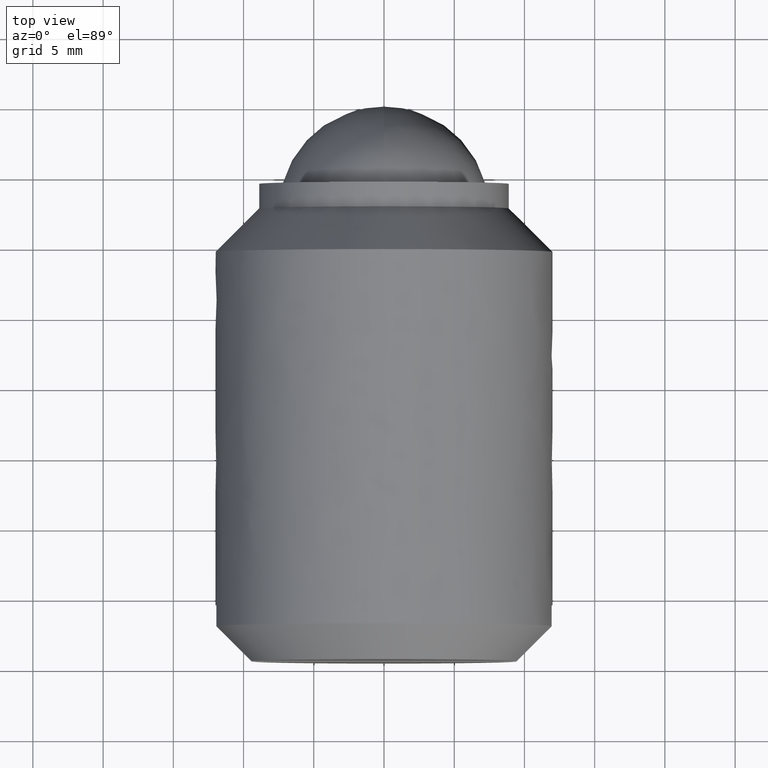
[diagram: clean part render]
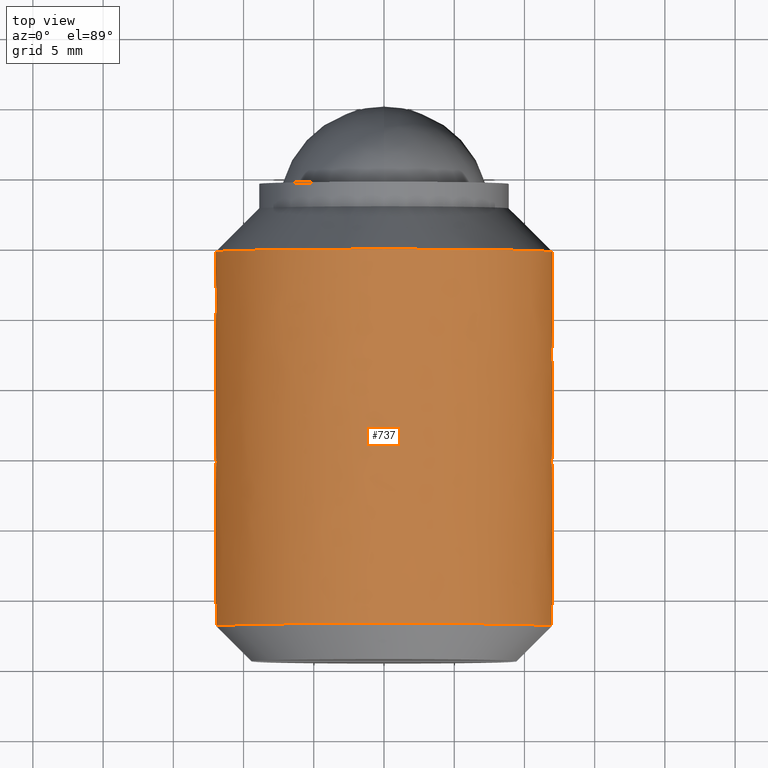
[diagram: same view with one face highlighted and labeled with its STEP entity id]
A machine part, top view. The second image highlights one B-rep face of the part: STEP entity #737.
In plain terms, the highlighted face is a freeform B-spline surface patch.
Its self-contained STEP definition (entity closure, byte-faithful):
#453=CARTESIAN_POINT('',(10.227581285169300,-10.350000000000980,-6.276669583089166));
#454=VERTEX_POINT('',#453);
#455=CARTESIAN_POINT('',(0.0,-10.350000000000000,12.0));
#456=VERTEX_POINT('',#455);
#457=CARTESIAN_POINT('',(10.227581285169304,-10.350000000000975,-6.276669583089166));
#458=CARTESIAN_POINT('',(11.999999999999996,-10.350000000000001,-3.388584391209628));
#459=CARTESIAN_POINT('',(12.0,-10.350000000000000,-2.571673E-015));
#460=CARTESIAN_POINT('',(12.0,-10.350000000000001,11.999999999999998));
#461=CARTESIAN_POINT('',(0.0,-10.350000000000000,12.0));
#469=(BOUNDED_CURVE()B_SPLINE_CURVE(2,(#457,#458,#459,#460,#461),.UNSPECIFIED.,.F.,.U.)B_SPLINE_CURVE_WITH_KNOTS((3,2,3),(0.160617616590979,0.250000000000000,0.500000000000000),.UNSPECIFIED.)CURVE()GEOMETRIC_REPRESENTATION_ITEM()RATIONAL_B_SPLINE_CURVE((0.865443586338289,0.895282024072454,1.0,0.707106781186548,1.0))REPRESENTATION_ITEM(''));
#470=EDGE_CURVE('',#454,#456,#469,.T.);
#480=CARTESIAN_POINT('',(-11.977617581065591,-10.350000000006011,0.732582474463767));
#481=VERTEX_POINT('',#480);
#487=CARTESIAN_POINT('',(0.0,-10.350000000000000,12.0));
#488=CARTESIAN_POINT('',(-11.288472802783120,-10.350000000000001,11.999999999999998));
#489=CARTESIAN_POINT('',(-11.977617581065589,-10.350000000006006,0.732582474463767));
#497=(BOUNDED_CURVE()B_SPLINE_CURVE(2,(#487,#488,#489),.UNSPECIFIED.,.F.,.U.)B_SPLINE_CURVE_WITH_KNOTS((3,3),(0.500000000000000,0.739332962240668),.UNSPECIFIED.)CURVE()GEOMETRIC_REPRESENTATION_ITEM()RATIONAL_B_SPLINE_CURVE((1.0,0.719603993284689,0.976072041670415))REPRESENTATION_ITEM(''));
#498=EDGE_CURVE('',#456,#481,#497,.T.);
#521=CARTESIAN_POINT('',(7.907633907891853,-10.350000000000000,-9.026036005842066));
#522=VERTEX_POINT('',#521);
#523=CARTESIAN_POINT('',(7.907633907891853,-10.349999999999998,-9.026036005842066));
#524=CARTESIAN_POINT('',(9.276014710696218,-10.350000000000003,-7.827209142293152));
#525=CARTESIAN_POINT('',(10.227581285169304,-10.350000000000975,-6.276669583089166));
#533=(BOUNDED_CURVE()B_SPLINE_CURVE(2,(#523,#524,#525),.UNSPECIFIED.,.F.,.U.)B_SPLINE_CURVE_WITH_KNOTS((3,3),(0.115045263890947,0.160617616590979),.UNSPECIFIED.)CURVE()GEOMETRIC_REPRESENTATION_ITEM()RATIONAL_B_SPLINE_CURVE((0.854482183304713,0.850230210317461,0.865443586338289))REPRESENTATION_ITEM(''));
#534=EDGE_CURVE('',#522,#454,#533,.T.);
#551=CARTESIAN_POINT('',(-8.559016019970436,-10.350000000000000,-8.410900354281903));
#552=VERTEX_POINT('',#551);
#566=CARTESIAN_POINT('',(-11.977617581065587,-10.350000000006006,0.732582474463767));
#567=CARTESIAN_POINT('',(-11.999999999999995,-10.350000000000001,0.366633159628313));
#568=CARTESIAN_POINT('',(-12.0,-10.350000000000000,-2.571673E-015));
#569=CARTESIAN_POINT('',(-12.000000000000004,-10.350000000000001,-4.909320764835662));
#570=CARTESIAN_POINT('',(-8.559016019970436,-10.349999999999996,-8.410900354281903));
#578=(BOUNDED_CURVE()B_SPLINE_CURVE(2,(#566,#567,#568,#569,#570),.UNSPECIFIED.,.F.,.U.)B_SPLINE_CURVE_WITH_KNOTS((3,2,3),(0.739332962240668,0.750000000000000,0.873683051704970),.UNSPECIFIED.)CURVE()GEOMETRIC_REPRESENTATION_ITEM()RATIONAL_B_SPLINE_CURVE((0.976072041670415,0.987502787901859,1.0,0.855096291493842,0.853569645958957))REPRESENTATION_ITEM(''));
#579=EDGE_CURVE('',#481,#552,#578,.T.);
#588=CARTESIAN_POINT('',(7.907634865919236,-9.683749999999996,-9.026035166522366));
#589=CARTESIAN_POINT('',(8.165956114538119,-9.683749999999998,-8.799722054009475));
#590=CARTESIAN_POINT('',(8.410911171598208,-9.683749999999996,-8.559005389850178));
#591=CARTESIAN_POINT('',(16.969916561448382,-9.683749999999996,-0.148094218251970));
#592=CARTESIAN_POINT('',(8.559005389850176,-9.683749999999996,8.410911171598206));
#593=CARTESIAN_POINT('',(0.148094218251968,-9.683749999999996,16.969916561448382));
#594=CARTESIAN_POINT('',(-8.410911171598208,-9.683749999999996,8.559005389850174));
#595=CARTESIAN_POINT('',(-16.969916561448382,-9.683749999999996,0.148094218251966));
#596=CARTESIAN_POINT('',(-8.559005389850176,-9.683749999999996,-8.410911171598210));
#597=CARTESIAN_POINT('',(7.907634865919236,-37.682906250000016,-9.026035166522366));
#598=CARTESIAN_POINT('',(8.165956114538119,-37.682906250000009,-8.799722054009475));
#599=CARTESIAN_POINT('',(8.410911171598208,-37.682906250000009,-8.559005389850178));
#600=CARTESIAN_POINT('',(16.969916561448382,-37.682906250000002,-0.148094218251970));
#601=CARTESIAN_POINT('',(8.559005389850176,-37.682906250000009,8.410911171598206));
#602=CARTESIAN_POINT('',(0.148094218251968,-37.682906250000002,16.969916561448382));
#603=CARTESIAN_POINT('',(-8.410911171598208,-37.682906250000009,8.559005389850174));
#604=CARTESIAN_POINT('',(-16.969916561448382,-37.682906250000002,0.148094218251966));
#605=CARTESIAN_POINT('',(-8.559005389850176,-37.682906250000009,-8.410911171598210));
#613=(BOUNDED_SURFACE()B_SPLINE_SURFACE(2,1,((#588,#597),(#589,#598),(#590,#599),(#591,#600),(#592,#601),(#593,#602),(#594,#603),(#595,#604),(#596,#605)),.UNSPECIFIED.,.F.,.F.,.U.)B_SPLINE_SURFACE_WITH_KNOTS((3,2,2,2,3),(2,2),(0.0,0.795290039756343,20.677541033664902,40.559792027573458,60.442043021482007),(0.0,27.999156250000020),.UNSPECIFIED.)GEOMETRIC_REPRESENTATION_ITEM()RATIONAL_B_SPLINE_SURFACE(((0.977505800795127,0.977505800795127),(0.988284271247462,0.988284271247462),(1.0,1.0),(0.707106781186548,0.707106781186548),(1.0,1.0),(0.707106781186548,0.707106781186548),(1.0,1.0),(0.707106781186548,0.707106781186548),(1.0,1.0)))REPRESENTATION_ITEM('')SURFACE());
#614=CARTESIAN_POINT('',(7.907634641947571,-37.0,-9.026035362742084));
#615=VERTEX_POINT('',#614);
#616=CARTESIAN_POINT('',(11.934718262280001,-37.0,-1.250000000000000));
#617=VERTEX_POINT('',#616);
#618=CARTESIAN_POINT('',(7.907634641947570,-37.000000000000007,-9.026035362742084));
#619=CARTESIAN_POINT('',(11.444854756407841,-37.0,-5.927106343645696));
#620=CARTESIAN_POINT('',(11.934718262280009,-37.0,-1.250000000000000));
#628=(BOUNDED_CURVE()B_SPLINE_CURVE(2,(#618,#619,#620),.UNSPECIFIED.,.F.,.U.)B_SPLINE_CURVE_WITH_KNOTS((3,3),(0.745516412150955,1.0),.UNSPECIFIED.)CURVE()GEOMETRIC_REPRESENTATION_ITEM()RATIONAL_B_SPLINE_CURVE((0.871552879233715,0.869207195110739,1.0))REPRESENTATION_ITEM(''));
#629=EDGE_CURVE('',#615,#617,#628,.T.);
#630=ORIENTED_EDGE('',*,*,#629,.F.);
#631=CARTESIAN_POINT('',(7.907633907891853,-10.350000000000000,-9.026036005842066));
#632=CARTESIAN_POINT('',(7.907634641947571,-37.0,-9.026035362742084));
#633=QUASI_UNIFORM_CURVE('',1,(#631,#632),.UNSPECIFIED.,.F.,.U.);
#634=EDGE_CURVE('',#522,#615,#633,.T.);
#635=ORIENTED_EDGE('',*,*,#634,.F.);
#636=ORIENTED_EDGE('',*,*,#534,.T.);
#637=ORIENTED_EDGE('',*,*,#470,.T.);
#638=ORIENTED_EDGE('',*,*,#498,.T.);
#639=ORIENTED_EDGE('',*,*,#579,.T.);
#640=CARTESIAN_POINT('',(-8.559005889002759,-36.999999999999972,-8.410910663656793));
#641=VERTEX_POINT('',#640);
#642=CARTESIAN_POINT('',(-8.559016019970436,-10.350000000000000,-8.410900354281903));
#643=CARTESIAN_POINT('',(-8.559005889002759,-36.999999999999972,-8.410910663656793));
#644=QUASI_UNIFORM_CURVE('',1,(#642,#643),.UNSPECIFIED.,.F.,.U.);
#645=EDGE_CURVE('',#552,#641,#644,.T.);
#646=ORIENTED_EDGE('',*,*,#645,.T.);
#647=CARTESIAN_POINT('',(-11.934718262280001,-37.0,-1.249999999999988));
#648=VERTEX_POINT('',#647);
#649=CARTESIAN_POINT('',(-11.934718262280009,-37.0,-1.249999999999984));
#650=CARTESIAN_POINT('',(-11.497943696049369,-37.0,-5.420225113673860));
#651=CARTESIAN_POINT('',(-8.559005889002759,-36.999999999999972,-8.410910663656793));
#659=(BOUNDED_CURVE()B_SPLINE_CURVE(2,(#649,#650,#651),.UNSPECIFIED.,.F.,.U.)B_SPLINE_CURVE_WITH_KNOTS((3,3),(0.0,0.230166470996834),.UNSPECIFIED.)CURVE()GEOMETRIC_REPRESENTATION_ITEM()RATIONAL_B_SPLINE_CURVE((1.0,0.881705069519077,0.872320245780594))REPRESENTATION_ITEM(''));
#660=EDGE_CURVE('',#648,#641,#659,.T.);
#661=ORIENTED_EDGE('',*,*,#660,.F.);
#662=CARTESIAN_POINT('',(-11.934718262280001,-35.500000000000000,-1.249999999999988));
#663=VERTEX_POINT('',#662);
#664=CARTESIAN_POINT('',(-11.934718262280001,-35.500000000000000,-1.249999999999988));
#665=CARTESIAN_POINT('',(-11.934718262280001,-37.0,-1.249999999999988));
#666=QUASI_UNIFORM_CURVE('',1,(#664,#665),.UNSPECIFIED.,.F.,.U.);
#667=EDGE_CURVE('',#663,#648,#666,.T.);
#668=ORIENTED_EDGE('',*,*,#667,.F.);
#669=CARTESIAN_POINT('',(-11.934718262280001,-35.500000000000000,1.250000000000000));
#670=VERTEX_POINT('',#669);
#671=CARTESIAN_POINT('',(-11.934718262280009,-35.500000000000000,1.250000000000006));
#672=CARTESIAN_POINT('',(-12.065638822419107,-35.500000000000007,1.431147E-014));
#673=CARTESIAN_POINT('',(-11.934718262280009,-35.500000000000000,-1.249999999999983));
#681=(BOUNDED_CURVE()B_SPLINE_CURVE(2,(#671,#672,#673),.UNSPECIFIED.,.F.,.U.)CURVE()GEOMETRIC_REPRESENTATION_ITEM()QUASI_UNIFORM_CURVE()RATIONAL_B_SPLINE_CURVE((1.0,0.994559855190001,1.0))REPRESENTATION_ITEM(''));
#682=EDGE_CURVE('',#670,#663,#681,.T.);
#683=ORIENTED_EDGE('',*,*,#682,.F.);
#684=CARTESIAN_POINT('',(-11.934718262280001,-37.0,1.250000000000000));
#685=VERTEX_POINT('',#684);
#686=CARTESIAN_POINT('',(-11.934718262280001,-35.500000000000000,1.250000000000000));
#687=CARTESIAN_POINT('',(-11.934718262280001,-37.0,1.250000000000000));
#688=QUASI_UNIFORM_CURVE('',1,(#686,#687),.UNSPECIFIED.,.F.,.U.);
#689=EDGE_CURVE('',#670,#685,#688,.T.);
#690=ORIENTED_EDGE('',*,*,#689,.T.);
#691=CARTESIAN_POINT('',(11.934718000000000,-37.0,1.250000000000000));
#692=VERTEX_POINT('',#691);
#693=CARTESIAN_POINT('',(11.934718000000000,-37.0,1.250000000000000));
#694=CARTESIAN_POINT('',(10.808801419051667,-37.0,12.000000012304392));
#695=CARTESIAN_POINT('',(-0.000000013660415,-37.0,12.0));
#696=CARTESIAN_POINT('',(-10.808801446372494,-37.0,11.999999987695604));
#697=CARTESIAN_POINT('',(-11.934718262280009,-37.0,1.250000000000005));
#705=(BOUNDED_CURVE()B_SPLINE_CURVE(2,(#693,#694,#695,#696,#697),.UNSPECIFIED.,.F.,.U.)B_SPLINE_CURVE_WITH_KNOTS((3,2,3),(0.0,0.500000000000000,1.0),.UNSPECIFIED.)CURVE()GEOMETRIC_REPRESENTATION_ITEM()RATIONAL_B_SPLINE_CURVE((1.0,0.743023104552894,1.0,0.743023104552894,1.0))REPRESENTATION_ITEM(''));
#706=EDGE_CURVE('',#692,#685,#705,.T.);
#707=ORIENTED_EDGE('',*,*,#706,.F.);
#708=CARTESIAN_POINT('',(11.934718000000000,-35.500000000000000,1.250000000000000));
#709=VERTEX_POINT('',#708);
#710=CARTESIAN_POINT('',(11.934718000000000,-35.500000000000000,1.250000000000000));
#711=CARTESIAN_POINT('',(11.934718000000000,-37.0,1.250000000000000));
#712=QUASI_UNIFORM_CURVE('',1,(#710,#711),.UNSPECIFIED.,.F.,.U.);
#713=EDGE_CURVE('',#709,#692,#712,.T.);
#714=ORIENTED_EDGE('',*,*,#713,.F.);
#715=CARTESIAN_POINT('',(11.934718262280001,-35.500000000000000,-1.250000000000000));
#716=VERTEX_POINT('',#715);
#717=CARTESIAN_POINT('',(11.934718262280009,-35.500000000000000,-1.250000000000007));
#718=CARTESIAN_POINT('',(12.065638823857675,-35.500000000000007,0.000000013735133));
#719=CARTESIAN_POINT('',(11.934718000000000,-35.500000000000000,1.250000000000000));
#727=(BOUNDED_CURVE()B_SPLINE_CURVE(2,(#717,#718,#719),.UNSPECIFIED.,.F.,.U.)CURVE()GEOMETRIC_REPRESENTATION_ITEM()QUASI_UNIFORM_CURVE()RATIONAL_B_SPLINE_CURVE((1.0,0.994559855071421,1.0))REPRESENTATION_ITEM(''));
#728=EDGE_CURVE('',#716,#709,#727,.T.);
#729=ORIENTED_EDGE('',*,*,#728,.F.);
#730=CARTESIAN_POINT('',(11.934718262280001,-35.500000000000000,-1.250000000000000));
#731=CARTESIAN_POINT('',(11.934718262280001,-37.0,-1.250000000000000));
#732=QUASI_UNIFORM_CURVE('',1,(#730,#731),.UNSPECIFIED.,.F.,.U.);
#733=EDGE_CURVE('',#716,#617,#732,.T.);
#734=ORIENTED_EDGE('',*,*,#733,.T.);
#735=EDGE_LOOP('',(#630,#635,#636,#637,#638,#639,#646,#661,#668,#683,#690,#707,#714,#729,#734));
#736=FACE_OUTER_BOUND('',#735,.T.);
#737=ADVANCED_FACE('',(#736),#613,.T.);